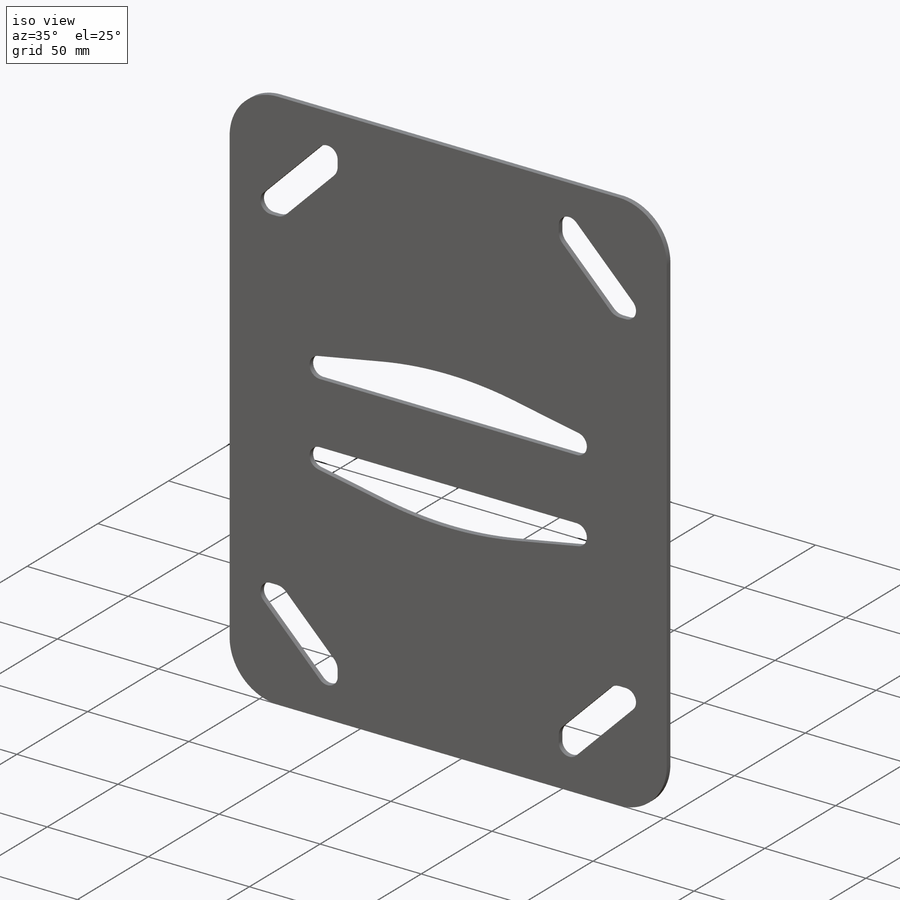
[diagram: iso view]
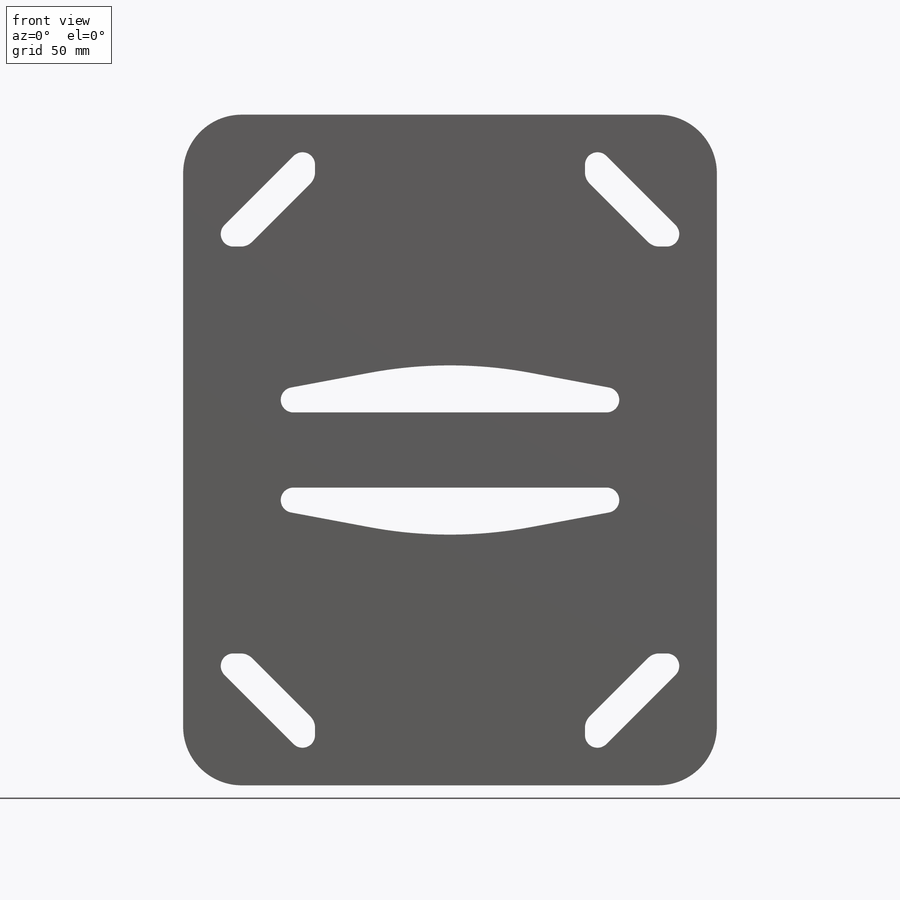
[diagram: front view]
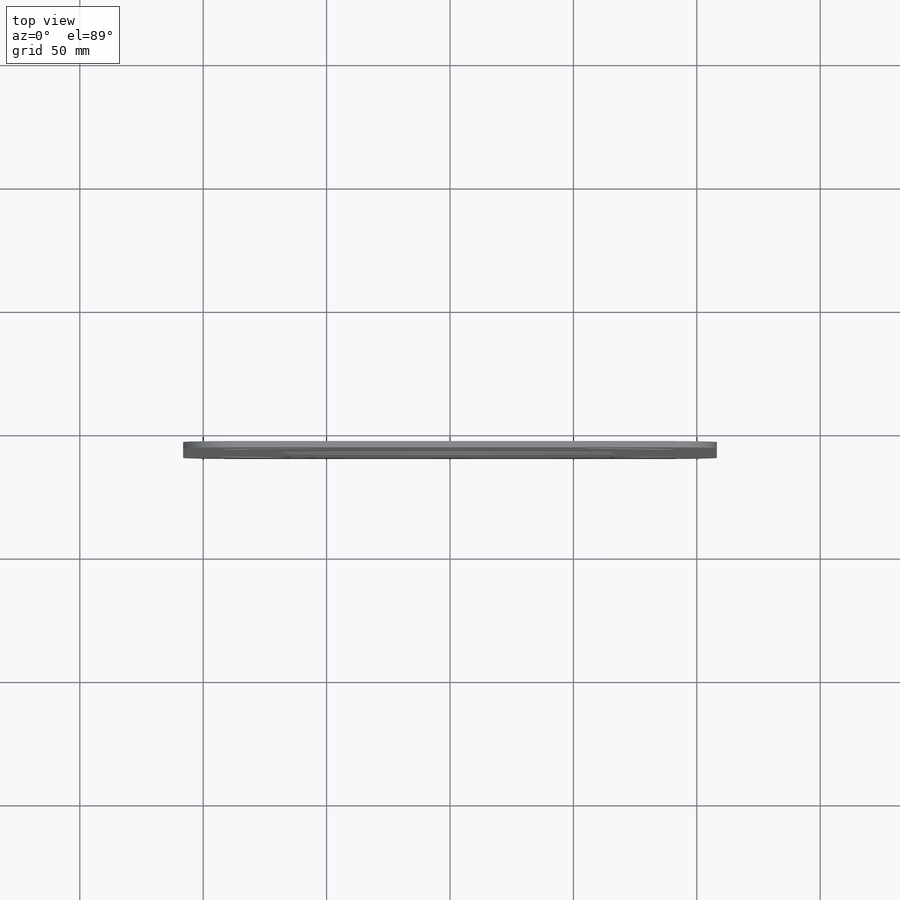
[diagram: top view]
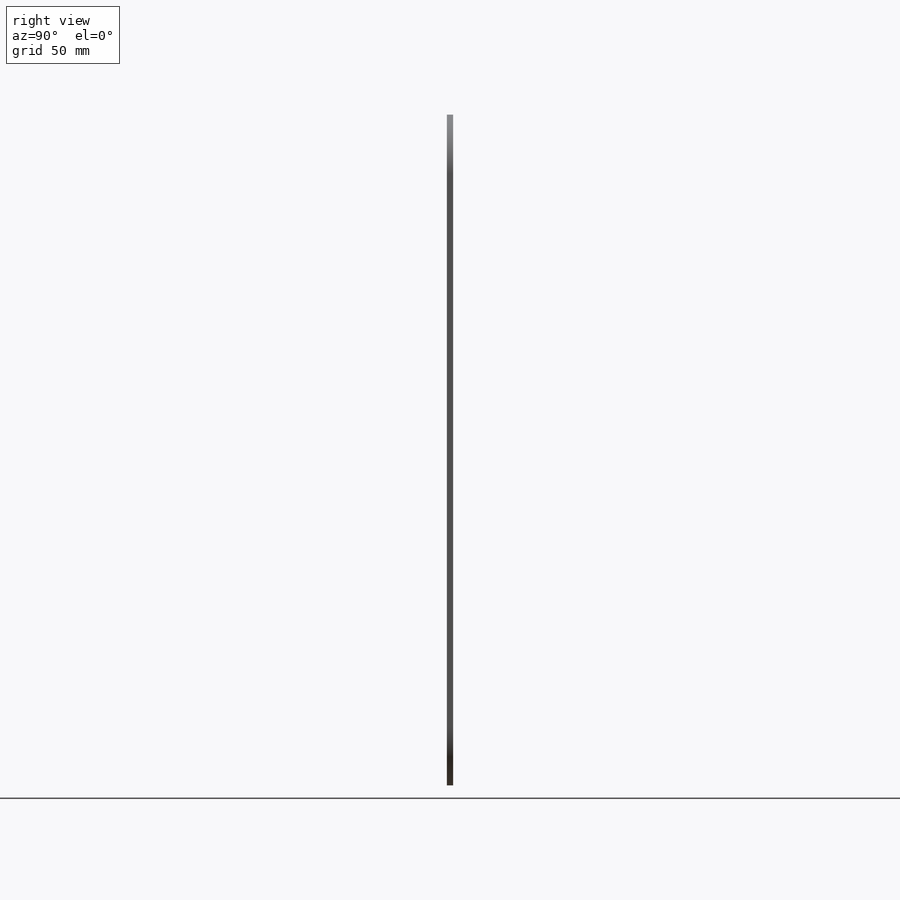
[diagram: right view]
SOLIDWORKS PART (.sldprt)
format: sldprt  version: not decoded by parser v0  size: 1,202,688 bytes
history: native  units: mm
features: sketch x38, cut_extrude x6, extrude x4, plane x4, fillet x3, material x1, chamfer x1, delete_body x1 (+11 scaffold rows collapsed)
feature tree (69):
  scaffold x11  (default folders/planes/origin — collapsed)
  material  "Material <not specified>"
  sketch  "Sketch1"  dims[D3=12.7mm D1=241.3mm D2=185.8mm]
  extrude  "iPad 2 outside dimensions"  Depth=8.8mm
  fillet  "Corner fillets"  Radius=8.5mm
  sketch  "Sketch63"  dims[D1=12.7mm D2=1.905mm D3=0.254mm]
  sketch  "guide curve2"  dims[D1=0.0mm]
  plane  "Plane2"  Offset=1.905mm
  sketch  "Loft depth/radius depth"  dims[D1=0.0mm]
  sketch  "guide curve"  dims[D2=8.5mm D1=11.557mm]
  sketch  "Sketch67"  dims[D1=12.7mm D2=1.905mm D3=0.508mm]
  sketch  "Sketch68"  dims[D1=12.7mm D2=1.905mm D3=0.508mm]
  sketch  "Sketch69"  dims[D1=12.7mm D2=1.905mm D3=0.508mm]
  sketch  "Sketch70"  dims[D3=12.7mm D1=1.905mm D2=0.508mm]
  fillet  "Cut-Loft24"  [1 undecoded]
  sketch  "Sketch69<3>"
  sketch  "guide curve2<3>"
  sketch  "Loft depth/radius depth<12>"
  sketch  "guide curve<3>"
  chamfer  "Chamfer1"  Distance=0.635mm Angle=45deg
  sketch  "Sketch33"  dims[D1=4.2mm D2=22.9mm D3=3.6mm]
  cut_extrude  "Headphone jack"  Depth=10mm
  sketch  "Sketch34"  dims[c1.D2=1.05mm c1.D3=1.05mm c1.D1=2.1mm c2.D2=12.1mm c2.D3=160.1mm c2.D4=3.6mm]
  sketch  "Sketch39"  dims[c1.D1=~1.93602mm c1.D2=1.25mm c1.D3=1.25mm c2.D1=2.5mm c2.D2=6.5mm c2.D3=20.1mm c2.D4=38.3mm c2.D5=26.6mm c2.D6=3.3mm c2.D7=3.6mm c2.D8=2.1mm]
  sketch  "Sketch40"  dims[D1=22.1mm D2=2.8mm D3=92.9mm D4=2.2mm]
  cut_extrude  "Dock connector cut"  Depth=7.5mm
  sketch  "Speaker outline"  dims[c1.D5=0.66mm c1.D1=9.9mm c1.D2=2.0mm c1.D3=38.1mm c1.D4=15.0mm c2.D2=2.0mm c2.D7=9.0]
  sketch  "Sketch43"  dims[c1.D1=0.66mm c1.D2=0.75mm c1.D3=0.75mm c2.D2=1.32mm c2.D3=~0.79375mm c3.D2=0.66mm c3.D3=0.935mm c3.D5=6.0 c4.D3=41.0]
  sketch  "Sketch46"
  sketch  "Sketch47"
  sketch  "Sketch48"  dims[c1.D1=1.2mm c1.D2=2.7mm c2.D1=1.2mm c2.D3=11.3mm c2.D4=10.8mm c2.D5=6.7mm c2.D6=11.1mm]
  sketch  "Screen outline"  dims[D1=149.0mm D2=198.1mm]
  sketch  "Sketch50"  dims[D1=0.125mm D2=0.0mm]
  cut_extrude  "Home Button"  Depth=2mm
  sketch  "Sketch51"  dims[c1.D3=0.5mm c1.D2=4.0mm c1.D1=0.0mm c2.D1=0.1mm c2.D5=0.5mm c2.D6=1.0mm c2.D7=5.0mm]
  sketch  "Sketch71"
  cut_extrude  "Right button cuts"  Depth=1mm
  sketch  "Sketch73"
  extrude  "Right buttons"  [1 undecoded]
  extrude  "Power button"  Depth=7.5mm
  sketch  "Sketch62"  dims[c1.D2=0.35mm c1.D1=0.7mm c2.D2=2.3mm c2.D3=2.5mm c2.D4=92.9mm c3.D3=2.5mm]
  cut_extrude  "Mic area"  Depth=2.54mm
  sketch  "Sketch74"  dims[D2=0.508mm D1=0.5mm]
  sketch  "Sketch75"  dims[D1=0.5mm]
  plane  "Plane3"
  sketch  "Sketch76"  dims[D1=5.3086mm]
  plane  "Plane4"
  sketch  "Sketch77"  dims[D1=0.0mm]
  fillet  "Button cutoffs"  [1 undecoded]
  sketch  "guide curve2<6>"
  sketch  "Sketch78"  dims[D1=~5.699989mm D2=~22.900005mm D3=12.3mm]
  plane  "Plane5"  Offset=2.54mm
  sketch  "Sketch79"
  sketch  "Sketch80"  dims[D1=0.0mm]
  sketch  "Sketch81"  dims[D1=5.08mm D4=6.35mm D5=2.54mm D2=6.35mm D3=6.35mm]
  sketch  "Sketch82"  dims[D2=5.08mm D3=177.8mm D4=15.24mm D5=127.0mm D6=19.05mm D1=15.24mm]
  delete_body  "Body-Delete1"
  extrude  "Boss-Extrude1"  Depth=2.54mm
  cut_extrude  "Cut-Extrude1"  [1 undecoded]
decode coverage: 38 of 53 modeling features carry decoded parameters
note: ~ marks probable driven/reference dimensions
note: 4 parameter values undecoded
summary: no parameter record found for 4 features
note: suppression state not decoded; provenance and decode notes live in map.json
